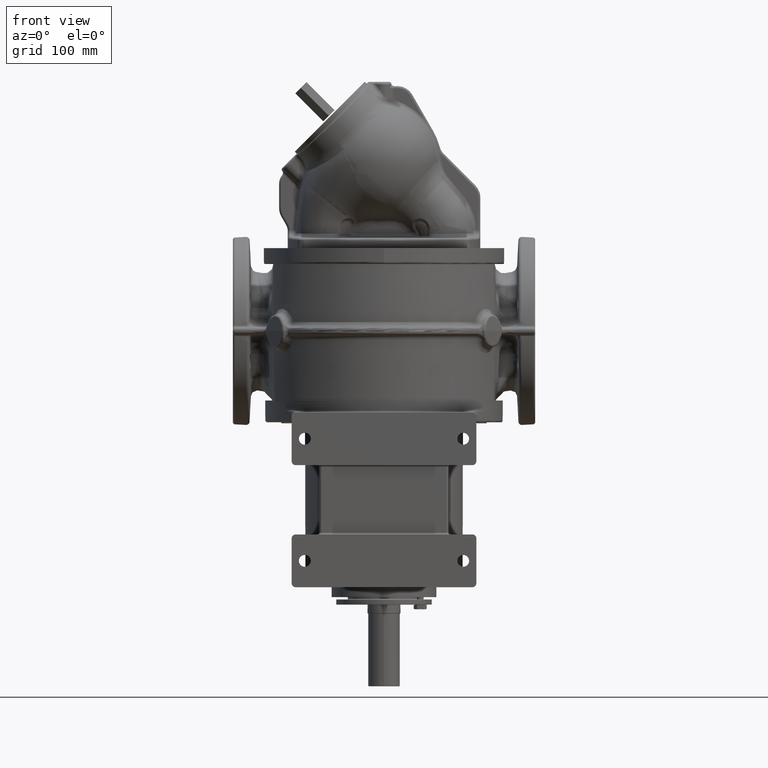
[diagram: clean part render]
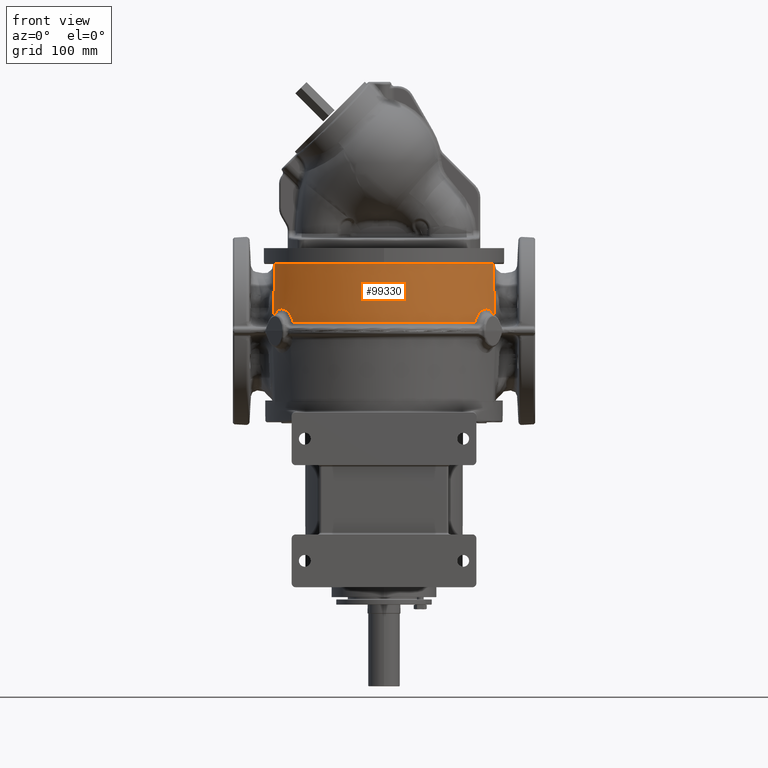
[diagram: same view with one face highlighted and labeled with its STEP entity id]
A machine part, front view. The second image highlights one B-rep face of the part: STEP entity #99330.
In plain terms, the highlighted face is a freeform B-spline surface patch.
Its self-contained STEP definition (entity closure, byte-faithful):
#16018=CARTESIAN_POINT('',(-1.861257044845E-14,1.E0,2.190146678817E2));
#16019=DIRECTION('',(0.E0,0.E0,1.E0));
#16020=DIRECTION('',(0.E0,-1.E0,0.E0));
#16021=AXIS2_PLACEMENT_3D('',#16018,#16019,#16020);
#16023=CARTESIAN_POINT('',(1.680602685963E2,-7.193362150972E1,
1.357574618073E2));
#16024=CARTESIAN_POINT('',(1.677265304818E2,-7.187859351291E1,
1.451506649249E2));
#16025=CARTESIAN_POINT('',(1.670623456517E2,-7.176908762385E1,
1.638420455889E2));
#16026=CARTESIAN_POINT('',(1.660762049629E2,-7.160652389333E1,
1.915867253273E2));
#16027=CARTESIAN_POINT('',(1.654250170828E2,-7.149919362450E1,
2.099028805022E2));
#16028=CARTESIAN_POINT('',(1.651010266386E2,-7.144579732936E1,
2.190146644951E2));
#16030=CARTESIAN_POINT('',(1.379259742713E2,-1.197940311413E2,
1.317586606695E2));
#16031=CARTESIAN_POINT('',(1.379966731685E2,-1.196995743292E2,
1.320176943479E2));
#16032=CARTESIAN_POINT('',(1.381424298209E2,-1.195054664901E2,
1.325333900269E2));
#16033=CARTESIAN_POINT('',(1.383742829260E2,-1.191983433268E2,
1.333003617269E2));
#16034=CARTESIAN_POINT('',(1.386187965625E2,-1.188758003916E2,
1.340589502517E2));
#16035=CARTESIAN_POINT('',(1.388755377304E2,-1.185381993772E2,
1.348080105717E2));
#16036=CARTESIAN_POINT('',(1.391439810182E2,-1.181860149719E2,
1.355462609165E2));
#16037=CARTESIAN_POINT('',(1.394235668158E2,-1.178197593528E2,
1.362724960825E2));
#16038=CARTESIAN_POINT('',(1.397136993435E2,-1.174399877559E2,
1.369855600199E2));
#16039=CARTESIAN_POINT('',(1.400137103598E2,-1.170473484038E2,
1.376842655342E2));
#16040=CARTESIAN_POINT('',(1.403230349995E2,-1.166423550459E2,
1.383677996779E2));
#16041=CARTESIAN_POINT('',(1.406414022053E2,-1.162251391415E2,
1.390360147625E2));
#16042=CARTESIAN_POINT('',(1.409685115016E2,-1.157958720968E2,
1.396886518315E2));
#16043=CARTESIAN_POINT('',(1.413040799560E2,-1.153547058756E2,
1.403254250081E2));
#16044=CARTESIAN_POINT('',(1.416478833901E2,-1.149017100337E2,
1.409462427901E2));
#16045=CARTESIAN_POINT('',(1.419997627444E2,-1.144368574154E2,
1.415512792477E2));
#16046=CARTESIAN_POINT('',(1.423595559753E2,-1.139601279844E2,
1.421405835165E2));
#16047=CARTESIAN_POINT('',(1.427272062475E2,-1.134713607494E2,
1.427143007068E2));
#16048=CARTESIAN_POINT('',(1.431022260246E2,-1.129709676924E2,
1.432718508109E2));
#16049=CARTESIAN_POINT('',(1.434838666929E2,-1.124597182381E2,
1.438123441599E2));
#16050=CARTESIAN_POINT('',(1.438714270132E2,-1.119383314840E2,
1.443350551840E2));
#16051=CARTESIAN_POINT('',(1.442641147983E2,-1.114076648063E2,
1.448392320917E2));
#16052=CARTESIAN_POINT('',(1.446616124370E2,-1.108679486970E2,
1.453247893453E2));
#16053=CARTESIAN_POINT('',(1.450637213252E2,-1.103192573887E2,
1.457917448727E2));
#16054=CARTESIAN_POINT('',(1.454702321769E2,-1.097616839499E2,
1.462400633727E2));
#16055=CARTESIAN_POINT('',(1.458809619987E2,-1.091952898587E2,
1.466696904421E2));
#16056=CARTESIAN_POINT('',(1.462956605399E2,-1.086202249246E2,
1.470806187974E2));
#16057=CARTESIAN_POINT('',(1.467140833280E2,-1.080366371063E2,
1.474728189032E2));
#16058=CARTESIAN_POINT('',(1.471360122333E2,-1.074446443025E2,
1.478462466317E2));
#16059=CARTESIAN_POINT('',(1.475611940669E2,-1.068444185690E2,
1.482007849806E2));
#16060=CARTESIAN_POINT('',(1.479888435981E2,-1.062368976388E2,
1.485358872848E2));
#16061=CARTESIAN_POINT('',(1.484182171135E2,-1.056229881500E2,
1.488511220732E2));
#16062=CARTESIAN_POINT('',(1.488485158508E2,-1.050037032869E2,
1.491460889917E2));
#16063=CARTESIAN_POINT('',(1.492791230377E2,-1.043798246648E2,
1.494205897473E2));
#16064=CARTESIAN_POINT('',(1.497100518001E2,-1.037512365924E2,
1.496748241189E2));
#16065=CARTESIAN_POINT('',(1.501412476847E2,-1.031179219621E2,
1.499088848217E2));
#16066=CARTESIAN_POINT('',(1.505726973079E2,-1.024798074416E2,
1.501228165831E2));
#16067=CARTESIAN_POINT('',(1.510043741311E2,-1.018368361282E2,
1.503166688360E2));
#16068=CARTESIAN_POINT('',(1.514362325539E2,-1.011889725723E2,
1.504905722323E2));
#16069=CARTESIAN_POINT('',(1.518682184191E2,-1.005361991697E2,
1.506445740266E2));
#16070=CARTESIAN_POINT('',(1.523003692639E2,-9.987836017632E1,
1.507786982593E2));
#16071=CARTESIAN_POINT('',(1.527323287256E2,-9.921590335238E1,
1.508927961431E2));
#16072=CARTESIAN_POINT('',(1.531632925092E2,-9.854999009383E1,
1.509866449444E2));
#16073=CARTESIAN_POINT('',(1.535925847612E2,-9.788162043225E1,
1.510601324848E2));
#16074=CARTESIAN_POINT('',(1.540194243340E2,-9.721199522362E1,
1.511132080018E2));
#16075=CARTESIAN_POINT('',(1.544435642175E2,-9.654150969679E1,
1.511459487311E2));
#16076=CARTESIAN_POINT('',(1.548650710728E2,-9.587007090460E1,
1.511584192476E2));
#16077=CARTESIAN_POINT('',(1.552839462012E2,-9.519769049760E1,
1.511506276111E2));
#16078=CARTESIAN_POINT('',(1.557002051045E2,-9.452436247538E1,
1.511225104874E2));
#16079=CARTESIAN_POINT('',(1.561139104355E2,-9.384999637834E1,
1.510740946876E2));
#16080=CARTESIAN_POINT('',(1.565251333651E2,-9.317448438845E1,
1.510053932588E2));
#16081=CARTESIAN_POINT('',(1.569339610966E2,-9.249769301755E1,
1.509163398894E2));
#16082=CARTESIAN_POINT('',(1.573403788109E2,-9.181965590201E1,
1.508068226569E2));
#16083=CARTESIAN_POINT('',(1.577436886792E2,-9.114156487328E1,
1.506769206573E2));
#16084=CARTESIAN_POINT('',(1.581432969613E2,-9.046447702876E1,
1.505267750678E2));
#16085=CARTESIAN_POINT('',(1.585385364418E2,-8.978961159939E1,
1.503566421773E2));
#16086=CARTESIAN_POINT('',(1.589291708505E2,-8.911748541349E1,
1.501666664533E2));
#16087=CARTESIAN_POINT('',(1.593152589339E2,-8.844811795727E1,
1.499568268751E2));
#16088=CARTESIAN_POINT('',(1.596967888510E2,-8.778165451569E1,
1.497270868504E2));
#16089=CARTESIAN_POINT('',(1.600737632341E2,-8.711822229282E1,
1.494773637719E2));
#16090=CARTESIAN_POINT('',(1.604463066999E2,-8.645772568108E1,
1.492075920026E2));
#16091=CARTESIAN_POINT('',(1.608145179090E2,-8.580011520284E1,
1.489176565384E2));
#16092=CARTESIAN_POINT('',(1.611785272663E2,-8.514528289187E1,
1.486073359649E2));
#16093=CARTESIAN_POINT('',(1.615378168058E2,-8.449429925795E1,
1.482769439760E2));
#16094=CARTESIAN_POINT('',(1.618918411544E2,-8.384832040889E1,
1.479269263668E2));
#16095=CARTESIAN_POINT('',(1.622400584878E2,-8.320853118670E1,
1.475578403840E2));
#16096=CARTESIAN_POINT('',(1.625823185835E2,-8.257542399826E1,
1.471699066187E2));
#16097=CARTESIAN_POINT('',(1.629185596126E2,-8.194933822123E1,
1.467632396641E2));
#16098=CARTESIAN_POINT('',(1.632486843396E2,-8.133069087779E1,
1.463379731518E2));
#16099=CARTESIAN_POINT('',(1.635726948414E2,-8.071971572550E1,
1.458941822396E2));
#16100=CARTESIAN_POINT('',(1.638906042885E2,-8.011662854327E1,
1.454319303568E2));
#16101=CARTESIAN_POINT('',(1.642024559602E2,-7.952159247336E1,
1.449511851999E2));
#16102=CARTESIAN_POINT('',(1.645079694732E2,-7.893539727905E1,
1.444524103716E2));
#16103=CARTESIAN_POINT('',(1.648068033088E2,-7.835896929811E1,
1.439362545928E2));
#16104=CARTESIAN_POINT('',(1.650986135811E2,-7.779325913693E1,
1.434034873433E2));
#16105=CARTESIAN_POINT('',(1.653835001406E2,-7.723836831962E1,
1.428541197713E2));
#16106=CARTESIAN_POINT('',(1.656616453563E2,-7.669423534073E1,
1.422879201009E2));
#16107=CARTESIAN_POINT('',(1.659331983627E2,-7.616086333271E1,
1.417046038345E2));
#16108=CARTESIAN_POINT('',(1.661981256107E2,-7.563860109470E1,
1.411043913145E2));
#16109=CARTESIAN_POINT('',(1.664563464518E2,-7.512789566991E1,
1.404876148953E2));
#16110=CARTESIAN_POINT('',(1.667078151886E2,-7.462913155400E1,
1.398545032347E2));
#16111=CARTESIAN_POINT('',(1.669523381031E2,-7.414299339546E1,
1.392056555232E2));
#16112=CARTESIAN_POINT('',(1.671896170936E2,-7.367038195164E1,
1.385420316785E2));
#16113=CARTESIAN_POINT('',(1.674194081047E2,-7.321209707296E1,
1.378645540454E2));
#16114=CARTESIAN_POINT('',(1.676414718155E2,-7.276893232679E1,
1.371742395435E2));
#16115=CARTESIAN_POINT('',(1.678556333586E2,-7.234155375352E1,
1.364719935263E2));
#16116=CARTESIAN_POINT('',(1.679929377451E2,-7.206776947232E1,
1.359968546351E2));
#16117=CARTESIAN_POINT('',(1.680602685963E2,-7.193362150972E1,
1.357574618073E2));
#16119=CARTESIAN_POINT('',(1.377449935958E2,-1.200198817761E2,
1.313898873624E2));
#16120=CARTESIAN_POINT('',(1.377547177687E2,-1.200081837003E2,
1.314017938357E2));
#16121=CARTESIAN_POINT('',(1.377737146126E2,-1.199852445942E2,
1.314265732092E2));
#16122=CARTESIAN_POINT('',(1.378009100046E2,-1.199521388964E2,
1.314667928221E2));
#16123=CARTESIAN_POINT('',(1.378265431745E2,-1.199206511653E2,
1.315097977942E2));
#16124=CARTESIAN_POINT('',(1.378504594257E2,-1.198909701176E2,
1.315553987919E2));
#16125=CARTESIAN_POINT('',(1.378725127825E2,-1.198632774846E2,
1.316033531111E2));
#16126=CARTESIAN_POINT('',(1.378925730014E2,-1.198377384172E2,
1.316533942508E2));
#16127=CARTESIAN_POINT('',(1.379105506156E2,-1.198144726914E2,
1.317052338102E2));
#16128=CARTESIAN_POINT('',(1.379210702362E2,-1.198005834174E2,
1.317406875364E2));
#16129=CARTESIAN_POINT('',(1.379259742713E2,-1.197940311413E2,
1.317586606695E2));
#16131=CARTESIAN_POINT('',(1.373644872697E2,-1.204719767770E2,
1.310035183463E2));
#16132=CARTESIAN_POINT('',(1.373542434685E2,-1.204842158774E2,
1.309910928165E2));
#16133=CARTESIAN_POINT('',(1.373697197957E2,-1.204661049764E2,
1.310039041596E2));
#16134=CARTESIAN_POINT('',(1.375762936302E2,-1.202225151720E2,
1.311863539759E2));
#16135=CARTESIAN_POINT('',(1.376845662764E2,-1.200925510381E2,
1.313163178667E2));
#16136=CARTESIAN_POINT('',(1.377449935957E2,-1.200198817761E2,
1.313898873624E2));
#16138=CARTESIAN_POINT('',(1.370697317124E2,-1.208073383816E2,
1.309492199516E2));
#16139=CARTESIAN_POINT('',(1.370910917655E2,-1.207833019880E2,
1.309492182779E2));
#16140=CARTESIAN_POINT('',(1.371331257027E2,-1.207358922220E2,
1.309508062066E2));
#16141=CARTESIAN_POINT('',(1.371940984909E2,-1.206668113699E2,
1.309576593390E2));
#16142=CARTESIAN_POINT('',(1.372530951288E2,-1.205996692779E2,
1.309687302519E2));
#16143=CARTESIAN_POINT('',(1.373102323820E2,-1.205343415808E2,
1.309839851676E2));
#16144=CARTESIAN_POINT('',(1.373466458721E2,-1.204925154052E2,
1.309966349086E2));
#16145=CARTESIAN_POINT('',(1.373644872697E2,-1.204719767770E2,
1.310035183463E2));
#16147=CARTESIAN_POINT('',(-1.370697317100E2,-1.208073383843E2,
1.309492199509E2));
#16148=CARTESIAN_POINT('',(-1.363978214847E2,-1.215634289459E2,
1.309492127501E2));
#16149=CARTESIAN_POINT('',(-1.350414519589E2,-1.230645694003E2,
1.309492037074E2));
#16150=CARTESIAN_POINT('',(-1.329697115072E2,-1.252824869833E2,
1.309491985881E2));
#16151=CARTESIAN_POINT('',(-1.308614103834E2,-1.274659615623E2,
1.309491992841E2));
#16152=CARTESIAN_POINT('',(-1.287171470537E2,-1.296143510876E2,
1.309492028197E2));
#16153=CARTESIAN_POINT('',(-1.265375434012E2,-1.317270259575E2,
1.309492073035E2));
#16154=CARTESIAN_POINT('',(-1.243232306973E2,-1.338033683756E2,
1.309492115522E2));
#16155=CARTESIAN_POINT('',(-1.220748512586E2,-1.358427744529E2,
1.309492151556E2));
#16156=CARTESIAN_POINT('',(-1.197930615563E2,-1.378446502752E2,
1.309492185752E2));
#16157=CARTESIAN_POINT('',(-1.174785132483E2,-1.398084293309E2,
1.309492226564E2));
#16158=CARTESIAN_POINT('',(-1.151317656843E2,-1.417336397912E2,
1.309492260706E2));
#16159=CARTESIAN_POINT('',(-1.127533954402E2,-1.436198047958E2,
1.309492281496E2));
#16160=CARTESIAN_POINT('',(-1.103439748809E2,-1.454664612338E2,
1.309492285953E2));
#16161=CARTESIAN_POINT('',(-1.079041122981E2,-1.472731280450E2,
1.309492275536E2));
#16162=CARTESIAN_POINT('',(-1.054345418572E2,-1.490392483084E2,
1.309492256258E2));
#16163=CARTESIAN_POINT('',(-1.029359931935E2,-1.507642925907E2,
1.309492237598E2));
#16164=CARTESIAN_POINT('',(-1.004092135045E2,-1.524477416101E2,
1.309492236728E2));
#16165=CARTESIAN_POINT('',(-9.785494447904E1,-1.540891022949E2,
1.309492261486E2));
#16166=CARTESIAN_POINT('',(-9.527390323127E1,-1.556879171211E2,
1.309492290496E2));
#16167=CARTESIAN_POINT('',(-9.266681990714E1,-1.572437380462E2,
1.309492313015E2));
#16168=CARTESIAN_POINT('',(-9.003443710803E1,-1.587561277996E2,
1.309492322127E2));
#16169=CARTESIAN_POINT('',(-8.737748243150E1,-1.602246753725E2,
1.309492316473E2));
#16170=CARTESIAN_POINT('',(-8.469664865936E1,-1.616490034706E2,
1.309492300185E2));
#16171=CARTESIAN_POINT('',(-8.199264134541E1,-1.630287404530E2,
1.309492281425E2));
#16172=CARTESIAN_POINT('',(-7.926616489504E1,-1.643635279734E2,
1.309492278166E2));
#16173=CARTESIAN_POINT('',(-7.651794267206E1,-1.656530109964E2,
1.309492292719E2));
#16174=CARTESIAN_POINT('',(-7.374872228027E1,-1.668968371576E2,
1.309492307071E2));
#16175=CARTESIAN_POINT('',(-7.095925517911E1,-1.680946670660E2,
1.309492313288E2));
#16176=CARTESIAN_POINT('',(-6.815029713401E1,-1.692461738121E2,
1.309492307106E2));
#16177=CARTESIAN_POINT('',(-6.532262215990E1,-1.703510375731E2,
1.309492289549E2));
#16178=CARTESIAN_POINT('',(-6.247702109493E1,-1.714089475238E2,
1.309492266975E2));
#16179=CARTESIAN_POINT('',(-5.961428655026E1,-1.724196080332E2,
1.309492249272E2));
#16180=CARTESIAN_POINT('',(-5.673521731764E1,-1.733827368795E2,
1.309492256942E2));
#16181=CARTESIAN_POINT('',(-5.384060692383E1,-1.742980690342E2,
1.309492285012E2));
#16182=CARTESIAN_POINT('',(-5.093124923255E1,-1.751653540074E2,
1.309492314770E2));
#16183=CARTESIAN_POINT('',(-4.800794419213E1,-1.759843539003E2,
1.309492336915E2));
#16184=CARTESIAN_POINT('',(-4.507149670947E1,-1.767548439506E2,
1.309492346081E2));
#16185=CARTESIAN_POINT('',(-4.212271014854E1,-1.774766141514E2,
1.309492342217E2));
#16186=CARTESIAN_POINT('',(-3.916238847824E1,-1.781494682960E2,
1.309492330600E2));
#16187=CARTESIAN_POINT('',(-3.619133874644E1,-1.787732232934E2,
1.309492320385E2));
#16188=CARTESIAN_POINT('',(-3.321036878921E1,-1.793477095613E2,
1.309492330302E2));
#16189=CARTESIAN_POINT('',(-3.022029235526E1,-1.798727701273E2,
1.309492350243E2));
#16190=CARTESIAN_POINT('',(-2.722192831010E1,-1.803482609832E2,
1.309492365546E2));
#16191=CARTESIAN_POINT('',(-2.421609849404E1,-1.807740515552E2,
1.309492369003E2));
#16192=CARTESIAN_POINT('',(-2.120362724257E1,-1.811500248248E2,
1.309492357825E2));
#16193=CARTESIAN_POINT('',(-1.818534246807E1,-1.814760772736E2,
1.309492334423E2));
#16194=CARTESIAN_POINT('',(-1.516207359400E1,-1.817521192188E2,
1.309492306388E2));
#16195=CARTESIAN_POINT('',(-1.213465055007E1,-1.819780748749E2,
1.309492285758E2));
#16196=CARTESIAN_POINT('',(-9.103902999553E0,-1.821538823242E2,
1.309492291826E2));
#16197=CARTESIAN_POINT('',(-6.070659696204E0,-1.822794935598E2,
1.309492309219E2));
#16198=CARTESIAN_POINT('',(-3.035751553471E0,-1.823548741657E2,
1.309492324636E2));
#16199=CARTESIAN_POINT('',(-1.082630360039E-5,-1.823800034522E2,
1.309492330618E2));
#16200=CARTESIAN_POINT('',(3.035729534121E0,-1.823548745267E2,
1.309492324559E2));
#16201=CARTESIAN_POINT('',(6.070636748731E0,-1.822794943141E2,
1.309492309042E2));
#16202=CARTESIAN_POINT('',(9.103878733755E0,-1.821538835232E2,
1.309492291525E2));
#16203=CARTESIAN_POINT('',(1.213462473858E1,-1.819780765794E2,
1.309492285221E2));
#16204=CARTESIAN_POINT('',(1.516204618928E1,-1.817521214861E2,
1.309492305740E2));
#16205=CARTESIAN_POINT('',(1.818531371399E1,-1.814760801345E2,
1.309492333877E2));
#16206=CARTESIAN_POINT('',(2.120359764727E1,-1.811500282680E2,
1.309492357487E2));
#16207=CARTESIAN_POINT('',(2.421606885175E1,-1.807740555066E2,
1.309492368930E2));
#16208=CARTESIAN_POINT('',(2.722189959588E1,-1.803482652998E2,
1.309492365733E2));
#16209=CARTESIAN_POINT('',(3.022026521557E1,-1.798727746702E2,
1.309492350620E2));
#16210=CARTESIAN_POINT('',(3.321034359503E1,-1.793477142103E2,
1.309492330764E2));
#16211=CARTESIAN_POINT('',(3.619131557624E1,-1.787732279676E2,
1.309492320698E2));
#16212=CARTESIAN_POINT('',(3.916236712056E1,-1.781494729733E2,
1.309492330800E2));
#16213=CARTESIAN_POINT('',(4.212269028790E1,-1.774766188453E2,
1.309492342389E2));
#16214=CARTESIAN_POINT('',(4.507147792623E1,-1.767548487169E2,
1.309492346273E2));
#16215=CARTESIAN_POINT('',(4.800792592188E1,-1.759843588562E2,
1.309492337151E2));
#16216=CARTESIAN_POINT('',(5.093123095293E1,-1.751653592897E2,
1.309492315045E2));
#16217=CARTESIAN_POINT('',(5.384058841232E1,-1.742980747166E2,
1.309492285288E2));
#16218=CARTESIAN_POINT('',(5.673519858026E1,-1.733827429734E2,
1.309492257156E2));
#16219=CARTESIAN_POINT('',(5.961426786298E1,-1.724196144581E2,
1.309492249275E2));
#16220=CARTESIAN_POINT('',(6.247700286434E1,-1.714089541333E2,
1.309492266862E2));
#16221=CARTESIAN_POINT('',(6.532260446902E1,-1.703510443203E2,
1.309492289379E2));
#16222=CARTESIAN_POINT('',(6.815027981898E1,-1.692461807448E2,
1.309492306910E2));
#16223=CARTESIAN_POINT('',(7.095923779742E1,-1.680946743575E2,
1.309492313070E2));
#16224=CARTESIAN_POINT('',(7.374870412543E1,-1.668968451252E2,
1.309492306812E2));
#16225=CARTESIAN_POINT('',(7.651792319149E1,-1.656530199307E2,
1.309492292378E2));
#16226=CARTESIAN_POINT('',(7.926614363050E1,-1.643635381537E2,
1.309492277694E2));
#16227=CARTESIAN_POINT('',(8.199261791435E1,-1.630287521503E2,
1.309492280738E2));
#16228=CARTESIAN_POINT('',(8.469662272714E1,-1.616490169580E2,
1.309492299552E2));
#16229=CARTESIAN_POINT('',(8.737745424949E1,-1.602246906318E2,
1.309492316042E2));
#16230=CARTESIAN_POINT('',(9.003440735933E1,-1.587561445561E2,
1.309492321992E2));
#16231=CARTESIAN_POINT('',(9.266678984614E1,-1.572437556507E2,
1.309492313201E2));
#16232=CARTESIAN_POINT('',(9.527387441126E1,-1.556879346544E2,
1.309492290958E2));
#16233=CARTESIAN_POINT('',(9.785491772224E1,-1.540891191906E2,
1.309492262116E2));
#16234=CARTESIAN_POINT('',(1.004091891410E2,-1.524477575659E2,
1.309492237341E2));
#16235=CARTESIAN_POINT('',(1.029359709795E2,-1.507643076711E2,
1.309492237968E2));
#16236=CARTESIAN_POINT('',(1.054345218455E2,-1.490392623866E2,
1.309492256490E2));
#16237=CARTESIAN_POINT('',(1.079040945966E2,-1.472731409450E2,
1.309492275665E2));
#16238=CARTESIAN_POINT('',(1.103439597361E2,-1.454664726652E2,
1.309492286023E2));
#16239=CARTESIAN_POINT('',(1.127533830346E2,-1.436198144889E2,
1.309492281538E2));
#16240=CARTESIAN_POINT('',(1.151317555630E2,-1.417336479734E2,
1.309492260737E2));
#16241=CARTESIAN_POINT('',(1.174785051954E2,-1.398084360666E2,
1.309492226588E2));
#16242=CARTESIAN_POINT('',(1.197930553434E2,-1.378446556519E2,
1.309492185746E2));
#16243=CARTESIAN_POINT('',(1.220748468518E2,-1.358427784023E2,
1.309492151505E2));
#16244=CARTESIAN_POINT('',(1.243232281858E2,-1.338033707107E2,
1.309492115473E2));
#16245=CARTESIAN_POINT('',(1.265375426186E2,-1.317270267204E2,
1.309492073002E2));
#16246=CARTESIAN_POINT('',(1.287171476870E2,-1.296143504772E2,
1.309492028185E2));
#16247=CARTESIAN_POINT('',(1.308614119574E2,-1.274659599656E2,
1.309491992850E2));
#16248=CARTESIAN_POINT('',(1.329697134027E2,-1.252824849910E2,
1.309491985903E2));
#16249=CARTESIAN_POINT('',(1.350414534269E2,-1.230645677790E2,
1.309492037092E2));
#16250=CARTESIAN_POINT('',(1.363978220804E2,-1.215634283044E2,
1.309492127520E2));
#16251=CARTESIAN_POINT('',(1.370697317124E2,-1.208073383816E2,
1.309492199516E2));
#16253=CARTESIAN_POINT('',(-1.373648715837E2,-1.204715354654E2,
1.310036457213E2));
#16254=CARTESIAN_POINT('',(-1.373469340694E2,-1.204921847424E2,
1.309967257640E2));
#16255=CARTESIAN_POINT('',(-1.373101219854E2,-1.205344697208E2,
1.309839230351E2));
#16256=CARTESIAN_POINT('',(-1.372530538742E2,-1.205997157024E2,
1.309687321470E2));
#16257=CARTESIAN_POINT('',(-1.371939811424E2,-1.206669447245E2,
1.309576403913E2));
#16258=CARTESIAN_POINT('',(-1.371330284383E2,-1.207360021166E2,
1.309507994480E2));
#16259=CARTESIAN_POINT('',(-1.370910508774E2,-1.207833479653E2,
1.309492189069E2));
#16260=CARTESIAN_POINT('',(-1.370697317100E2,-1.208073383843E2,
1.309492199509E2));
#16262=CARTESIAN_POINT('',(-1.377449873688E2,-1.200198892670E2,
1.313898797381E2));
#16263=CARTESIAN_POINT('',(-1.376846040409E2,-1.200925150471E2,
1.313161998293E2));
#16264=CARTESIAN_POINT('',(-1.375762756763E2,-1.202225342126E2,
1.311863788126E2));
#16265=CARTESIAN_POINT('',(-1.373694864885E2,-1.204663774890E2,
1.310037407687E2));
#16266=CARTESIAN_POINT('',(-1.373544700789E2,-1.204839562795E2,
1.309911569700E2));
#16267=CARTESIAN_POINT('',(-1.373648715837E2,-1.204715354654E2,
1.310036457213E2));
#16269=CARTESIAN_POINT('',(-1.379259742714E2,-1.197940311416E2,
1.317586606677E2));
#16270=CARTESIAN_POINT('',(-1.379210141654E2,-1.198006583291E2,
1.317404821339E2));
#16271=CARTESIAN_POINT('',(-1.379103952543E2,-1.198146770126E2,
1.317047250887E2));
#16272=CARTESIAN_POINT('',(-1.378923471068E2,-1.198380290727E2,
1.316527738611E2));
#16273=CARTESIAN_POINT('',(-1.378722827847E2,-1.198635676070E2,
1.316028290932E2));
#16274=CARTESIAN_POINT('',(-1.378502886660E2,-1.198911826315E2,
1.315550625039E2));
#16275=CARTESIAN_POINT('',(-1.378264649058E2,-1.199207472233E2,
1.315096681821E2));
#16276=CARTESIAN_POINT('',(-1.378009271415E2,-1.199521178231E2,
1.314668217926E2));
#16277=CARTESIAN_POINT('',(-1.377737837734E2,-1.199851607872E2,
1.314266685931E2));
#16278=CARTESIAN_POINT('',(-1.377547484096E2,-1.200081468263E2,
1.314018316268E2));
#16279=CARTESIAN_POINT('',(-1.377449873688E2,-1.200198892670E2,
1.313898797381E2));
#16281=CARTESIAN_POINT('',(-1.680602685932E2,-7.193362151580E1,
1.357574618182E2));
#16282=CARTESIAN_POINT('',(-1.679929076588E2,-7.206783145811E1,
1.359969518404E2));
#16283=CARTESIAN_POINT('',(-1.678555544376E2,-7.234171198345E1,
1.364722468653E2));
#16284=CARTESIAN_POINT('',(-1.676413595193E2,-7.276915584175E1,
1.371746073627E2));
#16285=CARTESIAN_POINT('',(-1.674192992844E2,-7.321231025420E1,
1.378649271943E2));
#16286=CARTESIAN_POINT('',(-1.671895479506E2,-7.367051281647E1,
1.385423078912E2));
#16287=CARTESIAN_POINT('',(-1.669523441316E2,-7.414297224470E1,
1.392057408934E2));
#16288=CARTESIAN_POINT('',(-1.667079305669E2,-7.462889242090E1,
1.398543153699E2));
#16289=CARTESIAN_POINT('',(-1.664566078072E2,-7.512736864749E1,
1.404870750674E2));
#16290=CARTESIAN_POINT('',(-1.661985570559E2,-7.563774192831E1,
1.411034632160E2));
#16291=CARTESIAN_POINT('',(-1.659337840291E2,-7.615970707631E1,
1.417033488299E2));
#16292=CARTESIAN_POINT('',(-1.656623250966E2,-7.669290336555E1,
1.422864895229E2));
#16293=CARTESIAN_POINT('',(-1.653841839474E2,-7.723703856788E1,
1.428527054544E2));
#16294=CARTESIAN_POINT('',(-1.650992533909E2,-7.779202473403E1,
1.434021797286E2));
#16295=CARTESIAN_POINT('',(-1.648074265683E2,-7.835777553360E1,
1.439350067721E2));
#16296=CARTESIAN_POINT('',(-1.645085391857E2,-7.893431407613E1,
1.444513002114E2));
#16297=CARTESIAN_POINT('',(-1.642028803236E2,-7.952079307627E1,
1.449503682267E2));
#16298=CARTESIAN_POINT('',(-1.638908012331E2,-8.011626425533E1,
1.454315208530E2));
#16299=CARTESIAN_POINT('',(-1.635727243198E2,-8.071966584688E1,
1.458940697038E2));
#16300=CARTESIAN_POINT('',(-1.632487902031E2,-8.133049182645E1,
1.463378184743E2));
#16301=CARTESIAN_POINT('',(-1.629189506398E2,-8.194860062521E1,
1.467628139297E2));
#16302=CARTESIAN_POINT('',(-1.625831844431E2,-8.257380486654E1,
1.471690108215E2));
#16303=CARTESIAN_POINT('',(-1.622414794994E2,-8.320590173790E1,
1.475563647005E2));
#16304=CARTESIAN_POINT('',(-1.618938899679E2,-8.384456511350E1,
1.479248270591E2));
#16305=CARTESIAN_POINT('',(-1.615404502721E2,-8.448951616019E1,
1.482743322015E2));
#16306=CARTESIAN_POINT('',(-1.611812163862E2,-8.514044323834E1,
1.486047639847E2));
#16307=CARTESIAN_POINT('',(-1.608167167660E2,-8.579619746746E1,
1.489156003583E2));
#16308=CARTESIAN_POINT('',(-1.604474711856E2,-8.645568003033E1,
1.492064322834E2));
#16309=CARTESIAN_POINT('',(-1.600741037092E2,-8.711764279636E1,
1.494768762776E2));
#16310=CARTESIAN_POINT('',(-1.596966889110E2,-8.778184113407E1,
1.497270093998E2));
#16311=CARTESIAN_POINT('',(-1.593151493679E2,-8.844830227123E1,
1.499569622940E2));
#16312=CARTESIAN_POINT('',(-1.589294304774E2,-8.911701692545E1,
1.501667739200E2));
#16313=CARTESIAN_POINT('',(-1.585394744910E2,-8.978797766030E1,
1.503565147851E2));
#16314=CARTESIAN_POINT('',(-1.581452471835E2,-9.046113294752E1,
1.505262839468E2));
#16315=CARTESIAN_POINT('',(-1.577466755740E2,-9.113650215939E1,
1.506761235144E2));
#16316=CARTESIAN_POINT('',(-1.573437956338E2,-9.181392086616E1,
1.508059799339E2));
#16317=CARTESIAN_POINT('',(-1.569372642945E2,-9.249220061850E1,
1.509156158119E2));
#16318=CARTESIAN_POINT('',(-1.565276816505E2,-9.317028666012E1,
1.510049016046E2));
#16319=CARTESIAN_POINT('',(-1.561157409981E2,-9.384700829744E1,
1.510737750917E2));
#16320=CARTESIAN_POINT('',(-1.557014773703E2,-9.452230360686E1,
1.511223254526E2));
#16321=CARTESIAN_POINT('',(-1.552848373790E2,-9.519625540020E1,
1.511505971329E2));
#16322=CARTESIAN_POINT('',(-1.548657872814E2,-9.586891735766E1,
1.511585550007E2));
#16323=CARTESIAN_POINT('',(-1.544442874811E2,-9.654034715098E1,
1.511462074682E2));
#16324=CARTESIAN_POINT('',(-1.540203156961E2,-9.721057136589E1,
1.511135876671E2));
#16325=CARTESIAN_POINT('',(-1.535938103841E2,-9.787968145149E1,
1.510606503442E2));
#16326=CARTESIAN_POINT('',(-1.531648786399E2,-9.854750499586E1,
1.509873153232E2));
#16327=CARTESIAN_POINT('',(-1.527342830388E2,-9.921287002337E1,
1.508936298124E2));
#16328=CARTESIAN_POINT('',(-1.523027067834E2,-9.987476526689E1,
1.507797087624E2));
#16329=CARTESIAN_POINT('',(-1.518709087744E2,-1.005320991989E2,
1.506457657946E2));
#16330=CARTESIAN_POINT('',(-1.514389832512E2,-1.011848171289E2,
1.504918434937E2));
#16331=CARTESIAN_POINT('',(-1.510069689339E2,-1.018329498528E2,
1.503179129493E2));
#16332=CARTESIAN_POINT('',(-1.505749391793E2,-1.024764813695E2,
1.501238867260E2));
#16333=CARTESIAN_POINT('',(-1.501429142733E2,-1.031154712259E2,
1.499097079892E2));
#16334=CARTESIAN_POINT('',(-1.497109129295E2,-1.037499787850E2,
1.496753357266E2));
#16335=CARTESIAN_POINT('',(-1.492788953749E2,-1.043801507985E2,
1.494206143284E2));
#16336=CARTESIAN_POINT('',(-1.488471812915E2,-1.050056130361E2,
1.491455484551E2));
#16337=CARTESIAN_POINT('',(-1.484165980763E2,-1.056252782490E2,
1.488504974326E2));
#16338=CARTESIAN_POINT('',(-1.479879184182E2,-1.062381705924E2,
1.485358714229E2));
#16339=CARTESIAN_POINT('',(-1.475617727423E2,-1.068435452917E2,
1.482020474207E2));
#16340=CARTESIAN_POINT('',(-1.471382596030E2,-1.074414275268E2,
1.478489939173E2));
#16341=CARTESIAN_POINT('',(-1.467175728359E2,-1.080317110023E2,
1.474766951509E2));
#16342=CARTESIAN_POINT('',(-1.462998843989E2,-1.086143256278E2,
1.470850910092E2));
#16343=CARTESIAN_POINT('',(-1.458852918389E2,-1.091893007627E2,
1.466741413921E2));
#16344=CARTESIAN_POINT('',(-1.454738754972E2,-1.097566923918E2,
1.462437144528E2));
#16345=CARTESIAN_POINT('',(-1.450659083858E2,-1.103162940096E2,
1.457938197951E2));
#16346=CARTESIAN_POINT('',(-1.446622060470E2,-1.108671693714E2,
1.453250811746E2));
#16347=CARTESIAN_POINT('',(-1.442635418001E2,-1.114084629744E2,
1.448381734197E2));
#16348=CARTESIAN_POINT('',(-1.438704831698E2,-1.119396163500E2,
1.443335928846E2));
#16349=CARTESIAN_POINT('',(-1.434832808642E2,-1.124605081E2,1.438114413102E2));
#16350=CARTESIAN_POINT('',(-1.431022664084E2,-1.129709135601E2,
1.432718776947E2));
#16351=CARTESIAN_POINT('',(-1.427277264655E2,-1.134706694301E2,
1.427150521456E2));
#16352=CARTESIAN_POINT('',(-1.423599502285E2,-1.139596101729E2,
1.421411462995E2));
#16353=CARTESIAN_POINT('',(-1.419992007027E2,-1.144376088763E2,
1.415502548651E2));
#16354=CARTESIAN_POINT('',(-1.416460961211E2,-1.149040730275E2,
1.409430605646E2));
#16355=CARTESIAN_POINT('',(-1.413013140063E2,-1.153583403347E2,
1.403204411039E2));
#16356=CARTESIAN_POINT('',(-1.409654667352E2,-1.157998411304E2,
1.396832749650E2));
#16357=CARTESIAN_POINT('',(-1.406385865771E2,-1.162287694497E2,
1.390313691522E2));
#16358=CARTESIAN_POINT('',(-1.403207403269E2,-1.166452730982E2,
1.383644426743E2));
#16359=CARTESIAN_POINT('',(-1.400120724688E2,-1.170493921920E2,
1.376823654720E2));
#16360=CARTESIAN_POINT('',(-1.397129318467E2,-1.174408894132E2,
1.369855903468E2));
#16361=CARTESIAN_POINT('',(-1.394236380721E2,-1.178195689188E2,
1.362744523128E2));
#16362=CARTESIAN_POINT('',(-1.391445767260E2,-1.181851489828E2,
1.355494228300E2));
#16363=CARTESIAN_POINT('',(-1.388764077993E2,-1.185369881512E2,
1.348117483712E2));
#16364=CARTESIAN_POINT('',(-1.386197139291E2,-1.188745428327E2,
1.340626379580E2));
#16365=CARTESIAN_POINT('',(-1.383750541628E2,-1.191972937337E2,
1.333034056486E2));
#16366=CARTESIAN_POINT('',(-1.381428904960E2,-1.195048421120E2,
1.325352189327E2));
#16367=CARTESIAN_POINT('',(-1.379968395814E2,-1.196993482521E2,
1.320183656105E2));
#16368=CARTESIAN_POINT('',(-1.379259742714E2,-1.197940311416E2,
1.317586606677E2));
#16370=CARTESIAN_POINT('',(-1.680602685932E2,-7.193362151580E1,
1.357574618182E2));
#16371=CARTESIAN_POINT('',(-1.677265304762E2,-7.187859351857E1,
1.451506650095E2));
#16372=CARTESIAN_POINT('',(-1.670623456470E2,-7.176908762E1,1.638420457555E2));
#16373=CARTESIAN_POINT('',(-1.660762049567E2,-7.160652389319E1,
1.915867254917E2));
#16374=CARTESIAN_POINT('',(-1.654250170804E2,-7.149919362409E1,
2.099028805720E2));
#16375=CARTESIAN_POINT('',(-1.651010266386E2,-7.144579732936E1,
2.190146644951E2));
#16377=CARTESIAN_POINT('',(-1.861257044845E-14,1.E0,2.190146678817E2));
#16378=DIRECTION('',(0.E0,0.E0,1.E0));
#16379=DIRECTION('',(-9.157207345908E-1,-4.018153011527E-1,0.E0));
#16380=AXIS2_PLACEMENT_3D('',#16377,#16378,#16379);
#16461=CARTESIAN_POINT('',(1.680602685963E2,-7.193362150972E1,
1.357574618073E2));
#67586=VERTEX_POINT('',#16461);
#67588=VERTEX_POINT('',#16030);
#67589=VERTEX_POINT('',#16119);
#67697=VERTEX_POINT('',#16131);
#67698=VERTEX_POINT('',#16138);
#67699=VERTEX_POINT('',#16147);
#67700=VERTEX_POINT('',#16253);
#67701=VERTEX_POINT('',#16262);
#67702=VERTEX_POINT('',#16269);
#67704=VERTEX_POINT('',#16281);
#68285=CARTESIAN_POINT('',(-2.805640416757E-14,-1.792962973897E2,
2.190146678817E2));
#68286=CARTESIAN_POINT('',(1.651010578897E2,-7.144581103236E1,
2.190146678817E2));
#68287=VERTEX_POINT('',#68285);
#68288=VERTEX_POINT('',#68286);
#68289=CARTESIAN_POINT('',(-1.651010578897E2,-7.144581103236E1,
2.190146678817E2));
#68290=VERTEX_POINT('',#68289);
#99220=CARTESIAN_POINT('',(1.683454410829E2,-6.337687730704E1,
2.207759789694E2));
#99221=CARTESIAN_POINT('',(1.693941146234E2,-6.361883138875E1,
1.902466158200E2));
#99222=CARTESIAN_POINT('',(1.704427881638E2,-6.386078547046E1,
1.597172526705E2));
#99223=CARTESIAN_POINT('',(1.714914617042E2,-6.410273955216E1,
1.291878895211E2));
#99224=CARTESIAN_POINT('',(1.681429108102E2,-6.390649433182E1,
2.207759789694E2));
#99225=CARTESIAN_POINT('',(1.691906855969E2,-6.415211005570E1,
1.902466158200E2));
#99226=CARTESIAN_POINT('',(1.702384603835E2,-6.439772577957E1,
1.597172526705E2));
#99227=CARTESIAN_POINT('',(1.712862351701E2,-6.464334150345E1,
1.291878895211E2));
#99228=CARTESIAN_POINT('',(1.646899253866E2,-7.281000128912E1,
2.207759789694E2));
#99229=CARTESIAN_POINT('',(1.657222441813E2,-7.311720257428E1,
1.902466158200E2));
#99230=CARTESIAN_POINT('',(1.667545629760E2,-7.342440385945E1,
1.597172526705E2));
#99231=CARTESIAN_POINT('',(1.677868817707E2,-7.373160514462E1,
1.291878895211E2));
#99232=CARTESIAN_POINT('',(1.566159272057E2,-8.954828022133E1,
2.207759789694E2));
#99233=CARTESIAN_POINT('',(1.576078047791E2,-8.997218875508E1,
1.902466158200E2));
#99234=CARTESIAN_POINT('',(1.585996823525E2,-9.039609728882E1,
1.597172526705E2));
#99235=CARTESIAN_POINT('',(1.595915599258E2,-9.082000582257E1,
1.291878895211E2));
#99236=CARTESIAN_POINT('',(1.413808467275E2,-1.118671442170E2,
2.207759789694E2));
#99237=CARTESIAN_POINT('',(1.422870046982E2,-1.124485489075E2,
1.902466158200E2));
#99238=CARTESIAN_POINT('',(1.431931626690E2,-1.130299535979E2,
1.597172526705E2));
#99239=CARTESIAN_POINT('',(1.440993206397E2,-1.136113582883E2,
1.291878895211E2));
#99240=CARTESIAN_POINT('',(1.229912131752E2,-1.316676368620E2,
2.207759789694E2));
#99241=CARTESIAN_POINT('',(1.237871157623E2,-1.323901317971E2,
1.902466158200E2));
#99242=CARTESIAN_POINT('',(1.245830183494E2,-1.331126267322E2,
1.597172526705E2));
#99243=CARTESIAN_POINT('',(1.253789209366E2,-1.338351216673E2,
1.291878895211E2));
#99244=CARTESIAN_POINT('',(1.018573074469E2,-1.485079637424E2,
2.207759789694E2));
#99245=CARTESIAN_POINT('',(1.025214394414E2,-1.493513890514E2,
1.902466158200E2));
#99246=CARTESIAN_POINT('',(1.031855714358E2,-1.501948143605E2,
1.597172526705E2));
#99247=CARTESIAN_POINT('',(1.038497034302E2,-1.510382396695E2,
1.291878895211E2));
#99248=CARTESIAN_POINT('',(7.845069445943E1,-1.620123696509E2,
2.207759789694E2));
#99249=CARTESIAN_POINT('',(7.896512590472E1,-1.629533516818E2,
1.902466158200E2));
#99250=CARTESIAN_POINT('',(7.947955735E1,-1.638943337127E2,1.597172526705E2));
#99251=CARTESIAN_POINT('',(7.999398879529E1,-1.648353157436E2,
1.291878895211E2));
#99252=CARTESIAN_POINT('',(5.329363549220E1,-1.718795354476E2,
2.207759789694E2));
#99253=CARTESIAN_POINT('',(5.364449134784E1,-1.728921103904E2,
1.902466158200E2));
#99254=CARTESIAN_POINT('',(5.399534720347E1,-1.739046853333E2,
1.597172526705E2));
#99255=CARTESIAN_POINT('',(5.434620305911E1,-1.749172602761E2,
1.291878895211E2));
#99256=CARTESIAN_POINT('',(2.694745274448E1,-1.778892978985E2,
2.207759789694E2));
#99257=CARTESIAN_POINT('',(2.712527621054E1,-1.789456024155E2,
1.902466158200E2));
#99258=CARTESIAN_POINT('',(2.730309967660E1,-1.800019069324E2,
1.597172526705E2));
#99259=CARTESIAN_POINT('',(2.748092314266E1,-1.810582114493E2,
1.291878895211E2));
#99260=CARTESIAN_POINT('',(5.329070518201E-14,-1.799075630334E2,
2.207759789694E2));
#99261=CARTESIAN_POINT('',(3.375077994860E-14,-1.809785740549E2,
1.902466158200E2));
#99262=CARTESIAN_POINT('',(1.332267629550E-14,-1.820495850763E2,
1.597172526705E2));
#99263=CARTESIAN_POINT('',(-1.065814103640E-14,-1.831205960978E2,
1.291878895211E2));
#99264=CARTESIAN_POINT('',(-2.694745274448E1,-1.778892978985E2,
2.207759789694E2));
#99265=CARTESIAN_POINT('',(-2.712527621054E1,-1.789456024155E2,
1.902466158200E2));
#99266=CARTESIAN_POINT('',(-2.730309967660E1,-1.800019069324E2,
1.597172526705E2));
#99267=CARTESIAN_POINT('',(-2.748092314266E1,-1.810582114493E2,
1.291878895211E2));
#99268=CARTESIAN_POINT('',(-5.329363549220E1,-1.718795354476E2,
2.207759789694E2));
#99269=CARTESIAN_POINT('',(-5.364449134784E1,-1.728921103904E2,
1.902466158200E2));
#99270=CARTESIAN_POINT('',(-5.399534720347E1,-1.739046853333E2,
1.597172526705E2));
#99271=CARTESIAN_POINT('',(-5.434620305911E1,-1.749172602761E2,
1.291878895211E2));
#99272=CARTESIAN_POINT('',(-7.845069445943E1,-1.620123696509E2,
2.207759789694E2));
#99273=CARTESIAN_POINT('',(-7.896512590472E1,-1.629533516818E2,
1.902466158200E2));
#99274=CARTESIAN_POINT('',(-7.947955735E1,-1.638943337127E2,1.597172526705E2));
#99275=CARTESIAN_POINT('',(-7.999398879529E1,-1.648353157436E2,
1.291878895211E2));
#99276=CARTESIAN_POINT('',(-1.018573074469E2,-1.485079637424E2,
2.207759789694E2));
#99277=CARTESIAN_POINT('',(-1.025214394414E2,-1.493513890514E2,
1.902466158200E2));
#99278=CARTESIAN_POINT('',(-1.031855714358E2,-1.501948143605E2,
1.597172526705E2));
#99279=CARTESIAN_POINT('',(-1.038497034302E2,-1.510382396695E2,
1.291878895211E2));
#99280=CARTESIAN_POINT('',(-1.229912131752E2,-1.316676368620E2,
2.207759789694E2));
#99281=CARTESIAN_POINT('',(-1.237871157623E2,-1.323901317971E2,
1.902466158200E2));
#99282=CARTESIAN_POINT('',(-1.245830183494E2,-1.331126267322E2,
1.597172526705E2));
#99283=CARTESIAN_POINT('',(-1.253789209366E2,-1.338351216673E2,
1.291878895211E2));
#99284=CARTESIAN_POINT('',(-1.413808467275E2,-1.118671442170E2,
2.207759789694E2));
#99285=CARTESIAN_POINT('',(-1.422870046982E2,-1.124485489075E2,
1.902466158200E2));
#99286=CARTESIAN_POINT('',(-1.431931626690E2,-1.130299535979E2,
1.597172526705E2));
#99287=CARTESIAN_POINT('',(-1.440993206397E2,-1.136113582883E2,
1.291878895211E2));
#99288=CARTESIAN_POINT('',(-1.566159272057E2,-8.954828022133E1,
2.207759789694E2));
#99289=CARTESIAN_POINT('',(-1.576078047791E2,-8.997218875508E1,
1.902466158200E2));
#99290=CARTESIAN_POINT('',(-1.585996823525E2,-9.039609728882E1,
1.597172526705E2));
#99291=CARTESIAN_POINT('',(-1.595915599258E2,-9.082000582257E1,
1.291878895211E2));
#99292=CARTESIAN_POINT('',(-1.646899253866E2,-7.281000128911E1,
2.207759789694E2));
#99293=CARTESIAN_POINT('',(-1.657222441813E2,-7.311720257428E1,
1.902466158200E2));
#99294=CARTESIAN_POINT('',(-1.667545629760E2,-7.342440385945E1,
1.597172526705E2));
#99295=CARTESIAN_POINT('',(-1.677868817707E2,-7.373160514461E1,
1.291878895211E2));
#99296=CARTESIAN_POINT('',(-1.681429108102E2,-6.390649433181E1,
2.207759789694E2));
#99297=CARTESIAN_POINT('',(-1.691906855969E2,-6.415211005569E1,
1.902466158200E2));
#99298=CARTESIAN_POINT('',(-1.702384603835E2,-6.439772577956E1,
1.597172526705E2));
#99299=CARTESIAN_POINT('',(-1.712862351701E2,-6.464334150344E1,
1.291878895211E2));
#99300=CARTESIAN_POINT('',(-1.683454410829E2,-6.337687730703E1,
2.207759789694E2));
#99301=CARTESIAN_POINT('',(-1.693941146234E2,-6.361883138873E1,
1.902466158200E2));
#99302=CARTESIAN_POINT('',(-1.704427881638E2,-6.386078547044E1,
1.597172526705E2));
#99303=CARTESIAN_POINT('',(-1.714914617042E2,-6.410273955215E1,
1.291878895211E2));
#99304=B_SPLINE_SURFACE_WITH_KNOTS('',3,3,((#99220,#99221,#99222,#99223),
(#99224,#99225,#99226,#99227),(#99228,#99229,#99230,#99231),(#99232,#99233,
#99234,#99235),(#99236,#99237,#99238,#99239),(#99240,#99241,#99242,#99243),(
#99244,#99245,#99246,#99247),(#99248,#99249,#99250,#99251),(#99252,#99253,
#99254,#99255),(#99256,#99257,#99258,#99259),(#99260,#99261,#99262,#99263),(
#99264,#99265,#99266,#99267),(#99268,#99269,#99270,#99271),(#99272,#99273,
#99274,#99275),(#99276,#99277,#99278,#99279),(#99280,#99281,#99282,#99283),(
#99284,#99285,#99286,#99287),(#99288,#99289,#99290,#99291),(#99292,#99293,
#99294,#99295),(#99296,#99297,#99298,#99299),(#99300,#99301,#99302,#99303)),
.UNSPECIFIED.,.F.,.F.,.F.,(4,1,1,1,1,1,1,1,1,1,1,1,1,1,1,1,1,1,4),(4,4),(
-3.945313527748E-3,0.E0,6.25E-2,1.25E-1,1.875E-1,2.5E-1,3.125E-1,3.75E-1,
4.375E-1,5.E-1,5.625E-1,6.25E-1,6.875E-1,7.5E-1,8.125E-1,8.75E-1,9.375E-1,1.E0,
1.003945313528E0),(6.112746391454E-2,8.937464588994E-1),.UNSPECIFIED.);
#99305=ORIENTED_EDGE('',*,*,#94743,.T.);
#99307=ORIENTED_EDGE('',*,*,#99306,.F.);
#99309=ORIENTED_EDGE('',*,*,#99308,.F.);
#99311=ORIENTED_EDGE('',*,*,#99310,.F.);
#99313=ORIENTED_EDGE('',*,*,#99312,.F.);
#99315=ORIENTED_EDGE('',*,*,#99314,.F.);
#99317=ORIENTED_EDGE('',*,*,#99316,.F.);
#99319=ORIENTED_EDGE('',*,*,#99318,.F.);
#99321=ORIENTED_EDGE('',*,*,#99320,.F.);
#99323=ORIENTED_EDGE('',*,*,#99322,.F.);
#99325=ORIENTED_EDGE('',*,*,#99324,.F.);
#99326=ORIENTED_EDGE('',*,*,#99204,.T.);
#99327=ORIENTED_EDGE('',*,*,#94589,.T.);
#99328=EDGE_LOOP('',(#99305,#99307,#99309,#99311,#99313,#99315,#99317,#99319,
#99321,#99323,#99325,#99326,#99327));
#99329=FACE_OUTER_BOUND('',#99328,.F.);
#99330=ADVANCED_FACE('',(#99329),#99304,.T.);
#16022=CIRCLE('',#16021,1.802962973897E2);
#16029=B_SPLINE_CURVE_WITH_KNOTS('',3,(#16023,#16024,#16025,#16026,#16027,
#16028),.UNSPECIFIED.,.F.,.F.,(4,1,1,4),(0.E0,3.333333333333E-1,
6.666666666667E-1,1.E0),.UNSPECIFIED.);
#16118=B_SPLINE_CURVE_WITH_KNOTS('',3,(#16030,#16031,#16032,#16033,#16034,
#16035,#16036,#16037,#16038,#16039,#16040,#16041,#16042,#16043,#16044,#16045,
#16046,#16047,#16048,#16049,#16050,#16051,#16052,#16053,#16054,#16055,#16056,
#16057,#16058,#16059,#16060,#16061,#16062,#16063,#16064,#16065,#16066,#16067,
#16068,#16069,#16070,#16071,#16072,#16073,#16074,#16075,#16076,#16077,#16078,
#16079,#16080,#16081,#16082,#16083,#16084,#16085,#16086,#16087,#16088,#16089,
#16090,#16091,#16092,#16093,#16094,#16095,#16096,#16097,#16098,#16099,#16100,
#16101,#16102,#16103,#16104,#16105,#16106,#16107,#16108,#16109,#16110,#16111,
#16112,#16113,#16114,#16115,#16116,#16117),.UNSPECIFIED.,.F.,.F.,(4,1,1,1,1,1,1,
1,1,1,1,1,1,1,1,1,1,1,1,1,1,1,1,1,1,1,1,1,1,1,1,1,1,1,1,1,1,1,1,1,1,1,1,1,1,1,1,
1,1,1,1,1,1,1,1,1,1,1,1,1,1,1,1,1,1,1,1,1,1,1,1,1,1,1,1,1,1,1,1,1,1,1,1,1,1,4),(
0.E0,1.176470588235E-2,2.352941176471E-2,3.529411764706E-2,4.705882352941E-2,
5.882352941176E-2,7.058823529412E-2,8.235294117647E-2,9.411764705882E-2,
1.058823529412E-1,1.176470588235E-1,1.294117647059E-1,1.411764705882E-1,
1.529411764706E-1,1.647058823529E-1,1.764705882353E-1,1.882352941176E-1,2.E-1,
2.117647058824E-1,2.235294117647E-1,2.352941176471E-1,2.470588235294E-1,
2.588235294118E-1,2.705882352941E-1,2.823529411765E-1,2.941176470588E-1,
3.058823529412E-1,3.176470588235E-1,3.294117647059E-1,3.411764705882E-1,
3.529411764706E-1,3.647058823529E-1,3.764705882353E-1,3.882352941176E-1,4.E-1,
4.117647058824E-1,4.235294117647E-1,4.352941176471E-1,4.470588235294E-1,
4.588235294118E-1,4.705882352941E-1,4.823529411765E-1,4.941176470588E-1,
5.058823529412E-1,5.176470588235E-1,5.294117647059E-1,5.411764705882E-1,
5.529411764706E-1,5.647058823529E-1,5.764705882353E-1,5.882352941176E-1,6.E-1,
6.117647058824E-1,6.235294117647E-1,6.352941176471E-1,6.470588235294E-1,
6.588235294118E-1,6.705882352941E-1,6.823529411765E-1,6.941176470588E-1,
7.058823529412E-1,7.176470588235E-1,7.294117647059E-1,7.411764705882E-1,
7.529411764706E-1,7.647058823529E-1,7.764705882353E-1,7.882352941176E-1,8.E-1,
8.117647058824E-1,8.235294117647E-1,8.352941176471E-1,8.470588235294E-1,
8.588235294118E-1,8.705882352941E-1,8.823529411765E-1,8.941176470588E-1,
9.058823529412E-1,9.176470588235E-1,9.294117647059E-1,9.411764705882E-1,
9.529411764706E-1,9.647058823529E-1,9.764705882353E-1,9.882352941176E-1,1.E0),
.UNSPECIFIED.);
#16130=B_SPLINE_CURVE_WITH_KNOTS('',3,(#16119,#16120,#16121,#16122,#16123,
#16124,#16125,#16126,#16127,#16128,#16129),.UNSPECIFIED.,.F.,.F.,(4,1,1,1,1,1,1,
1,4),(0.E0,1.25E-1,2.5E-1,3.75E-1,5.E-1,6.25E-1,7.5E-1,8.75E-1,1.E0),
.UNSPECIFIED.);
#16137=B_SPLINE_CURVE_WITH_KNOTS('',3,(#16131,#16132,#16133,#16134,#16135,
#16136),.UNSPECIFIED.,.F.,.F.,(4,1,1,4),(0.E0,3.333333333333E-1,
6.666666666667E-1,1.E0),.UNSPECIFIED.);
#16146=B_SPLINE_CURVE_WITH_KNOTS('',3,(#16138,#16139,#16140,#16141,#16142,
#16143,#16144,#16145),.UNSPECIFIED.,.F.,.F.,(4,1,1,1,1,4),(0.E0,2.E-1,4.E-1,
6.E-1,8.E-1,1.E0),.UNSPECIFIED.);
#16252=B_SPLINE_CURVE_WITH_KNOTS('',3,(#16147,#16148,#16149,#16150,#16151,
#16152,#16153,#16154,#16155,#16156,#16157,#16158,#16159,#16160,#16161,#16162,
#16163,#16164,#16165,#16166,#16167,#16168,#16169,#16170,#16171,#16172,#16173,
#16174,#16175,#16176,#16177,#16178,#16179,#16180,#16181,#16182,#16183,#16184,
#16185,#16186,#16187,#16188,#16189,#16190,#16191,#16192,#16193,#16194,#16195,
#16196,#16197,#16198,#16199,#16200,#16201,#16202,#16203,#16204,#16205,#16206,
#16207,#16208,#16209,#16210,#16211,#16212,#16213,#16214,#16215,#16216,#16217,
#16218,#16219,#16220,#16221,#16222,#16223,#16224,#16225,#16226,#16227,#16228,
#16229,#16230,#16231,#16232,#16233,#16234,#16235,#16236,#16237,#16238,#16239,
#16240,#16241,#16242,#16243,#16244,#16245,#16246,#16247,#16248,#16249,#16250,
#16251),.UNSPECIFIED.,.F.,.F.,(4,1,1,1,1,1,1,1,1,1,1,1,1,1,1,1,1,1,1,1,1,1,1,1,
1,1,1,1,1,1,1,1,1,1,1,1,1,1,1,1,1,1,1,1,1,1,1,1,1,1,1,1,1,1,1,1,1,1,1,1,1,1,1,1,
1,1,1,1,1,1,1,1,1,1,1,1,1,1,1,1,1,1,1,1,1,1,1,1,1,1,1,1,1,1,1,1,1,1,1,1,1,1,4),(
0.E0,9.803921568627E-3,1.960784313725E-2,2.941176470588E-2,3.921568627451E-2,
4.901960784314E-2,5.882352941176E-2,6.862745098039E-2,7.843137254902E-2,
8.823529411765E-2,9.803921568627E-2,1.078431372549E-1,1.176470588235E-1,
1.274509803922E-1,1.372549019608E-1,1.470588235294E-1,1.568627450980E-1,
1.666666666667E-1,1.764705882353E-1,1.862745098039E-1,1.960784313725E-1,
2.058823529412E-1,2.156862745098E-1,2.254901960784E-1,2.352941176471E-1,
2.450980392157E-1,2.549019607843E-1,2.647058823529E-1,2.745098039216E-1,
2.843137254902E-1,2.941176470588E-1,3.039215686275E-1,3.137254901961E-1,
3.235294117647E-1,3.333333333333E-1,3.431372549020E-1,3.529411764706E-1,
3.627450980392E-1,3.725490196078E-1,3.823529411765E-1,3.921568627451E-1,
4.019607843137E-1,4.117647058824E-1,4.215686274510E-1,4.313725490196E-1,
4.411764705882E-1,4.509803921569E-1,4.607843137255E-1,4.705882352941E-1,
4.803921568627E-1,4.901960784314E-1,5.E-1,5.098039215686E-1,5.196078431373E-1,
5.294117647059E-1,5.392156862745E-1,5.490196078431E-1,5.588235294118E-1,
5.686274509804E-1,5.784313725490E-1,5.882352941176E-1,5.980392156863E-1,
6.078431372549E-1,6.176470588235E-1,6.274509803922E-1,6.372549019608E-1,
6.470588235294E-1,6.568627450980E-1,6.666666666667E-1,6.764705882353E-1,
6.862745098039E-1,6.960784313725E-1,7.058823529412E-1,7.156862745098E-1,
7.254901960784E-1,7.352941176471E-1,7.450980392157E-1,7.549019607843E-1,
7.647058823529E-1,7.745098039216E-1,7.843137254902E-1,7.941176470588E-1,
8.039215686275E-1,8.137254901961E-1,8.235294117647E-1,8.333333333333E-1,
8.431372549020E-1,8.529411764706E-1,8.627450980392E-1,8.725490196078E-1,
8.823529411765E-1,8.921568627451E-1,9.019607843137E-1,9.117647058824E-1,
9.215686274510E-1,9.313725490196E-1,9.411764705882E-1,9.509803921569E-1,
9.607843137255E-1,9.705882352941E-1,9.803921568627E-1,9.901960784314E-1,1.E0),
.UNSPECIFIED.);
#16261=B_SPLINE_CURVE_WITH_KNOTS('',3,(#16253,#16254,#16255,#16256,#16257,
#16258,#16259,#16260),.UNSPECIFIED.,.F.,.F.,(4,1,1,1,1,4),(0.E0,2.E-1,4.E-1,
6.E-1,8.E-1,1.E0),.UNSPECIFIED.);
#16268=B_SPLINE_CURVE_WITH_KNOTS('',3,(#16262,#16263,#16264,#16265,#16266,
#16267),.UNSPECIFIED.,.F.,.F.,(4,1,1,4),(0.E0,3.333333333333E-1,
6.666666666667E-1,1.E0),.UNSPECIFIED.);
#16280=B_SPLINE_CURVE_WITH_KNOTS('',3,(#16269,#16270,#16271,#16272,#16273,
#16274,#16275,#16276,#16277,#16278,#16279),.UNSPECIFIED.,.F.,.F.,(4,1,1,1,1,1,1,
1,4),(0.E0,1.25E-1,2.5E-1,3.75E-1,5.E-1,6.25E-1,7.5E-1,8.75E-1,1.E0),
.UNSPECIFIED.);
#16369=B_SPLINE_CURVE_WITH_KNOTS('',3,(#16281,#16282,#16283,#16284,#16285,
#16286,#16287,#16288,#16289,#16290,#16291,#16292,#16293,#16294,#16295,#16296,
#16297,#16298,#16299,#16300,#16301,#16302,#16303,#16304,#16305,#16306,#16307,
#16308,#16309,#16310,#16311,#16312,#16313,#16314,#16315,#16316,#16317,#16318,
#16319,#16320,#16321,#16322,#16323,#16324,#16325,#16326,#16327,#16328,#16329,
#16330,#16331,#16332,#16333,#16334,#16335,#16336,#16337,#16338,#16339,#16340,
#16341,#16342,#16343,#16344,#16345,#16346,#16347,#16348,#16349,#16350,#16351,
#16352,#16353,#16354,#16355,#16356,#16357,#16358,#16359,#16360,#16361,#16362,
#16363,#16364,#16365,#16366,#16367,#16368),.UNSPECIFIED.,.F.,.F.,(4,1,1,1,1,1,1,
1,1,1,1,1,1,1,1,1,1,1,1,1,1,1,1,1,1,1,1,1,1,1,1,1,1,1,1,1,1,1,1,1,1,1,1,1,1,1,1,
1,1,1,1,1,1,1,1,1,1,1,1,1,1,1,1,1,1,1,1,1,1,1,1,1,1,1,1,1,1,1,1,1,1,1,1,1,1,4),(
0.E0,1.176470588235E-2,2.352941176471E-2,3.529411764706E-2,4.705882352941E-2,
5.882352941176E-2,7.058823529412E-2,8.235294117647E-2,9.411764705882E-2,
1.058823529412E-1,1.176470588235E-1,1.294117647059E-1,1.411764705882E-1,
1.529411764706E-1,1.647058823529E-1,1.764705882353E-1,1.882352941176E-1,2.E-1,
2.117647058824E-1,2.235294117647E-1,2.352941176471E-1,2.470588235294E-1,
2.588235294118E-1,2.705882352941E-1,2.823529411765E-1,2.941176470588E-1,
3.058823529412E-1,3.176470588235E-1,3.294117647059E-1,3.411764705882E-1,
3.529411764706E-1,3.647058823529E-1,3.764705882353E-1,3.882352941176E-1,4.E-1,
4.117647058824E-1,4.235294117647E-1,4.352941176471E-1,4.470588235294E-1,
4.588235294118E-1,4.705882352941E-1,4.823529411765E-1,4.941176470588E-1,
5.058823529412E-1,5.176470588235E-1,5.294117647059E-1,5.411764705882E-1,
5.529411764706E-1,5.647058823529E-1,5.764705882353E-1,5.882352941176E-1,6.E-1,
6.117647058824E-1,6.235294117647E-1,6.352941176471E-1,6.470588235294E-1,
6.588235294118E-1,6.705882352941E-1,6.823529411765E-1,6.941176470588E-1,
7.058823529412E-1,7.176470588235E-1,7.294117647059E-1,7.411764705882E-1,
7.529411764706E-1,7.647058823529E-1,7.764705882353E-1,7.882352941176E-1,8.E-1,
8.117647058824E-1,8.235294117647E-1,8.352941176471E-1,8.470588235294E-1,
8.588235294118E-1,8.705882352941E-1,8.823529411765E-1,8.941176470588E-1,
9.058823529412E-1,9.176470588235E-1,9.294117647059E-1,9.411764705882E-1,
9.529411764706E-1,9.647058823529E-1,9.764705882353E-1,9.882352941176E-1,1.E0),
.UNSPECIFIED.);
#16376=B_SPLINE_CURVE_WITH_KNOTS('',3,(#16370,#16371,#16372,#16373,#16374,
#16375),.UNSPECIFIED.,.F.,.F.,(4,1,1,4),(0.E0,3.333333333333E-1,
6.666666666667E-1,1.E0),.UNSPECIFIED.);
#16381=CIRCLE('',#16380,1.802962973897E2);
#94589=EDGE_CURVE('',#68290,#68287,#16381,.T.);
#94743=EDGE_CURVE('',#68287,#68288,#16022,.T.);
#99204=EDGE_CURVE('',#67704,#68290,#16376,.T.);
#99306=EDGE_CURVE('',#67586,#68288,#16029,.T.);
#99308=EDGE_CURVE('',#67588,#67586,#16118,.T.);
#99310=EDGE_CURVE('',#67589,#67588,#16130,.T.);
#99312=EDGE_CURVE('',#67697,#67589,#16137,.T.);
#99314=EDGE_CURVE('',#67698,#67697,#16146,.T.);
#99316=EDGE_CURVE('',#67699,#67698,#16252,.T.);
#99318=EDGE_CURVE('',#67700,#67699,#16261,.T.);
#99320=EDGE_CURVE('',#67701,#67700,#16268,.T.);
#99322=EDGE_CURVE('',#67702,#67701,#16280,.T.);
#99324=EDGE_CURVE('',#67704,#67702,#16369,.T.);